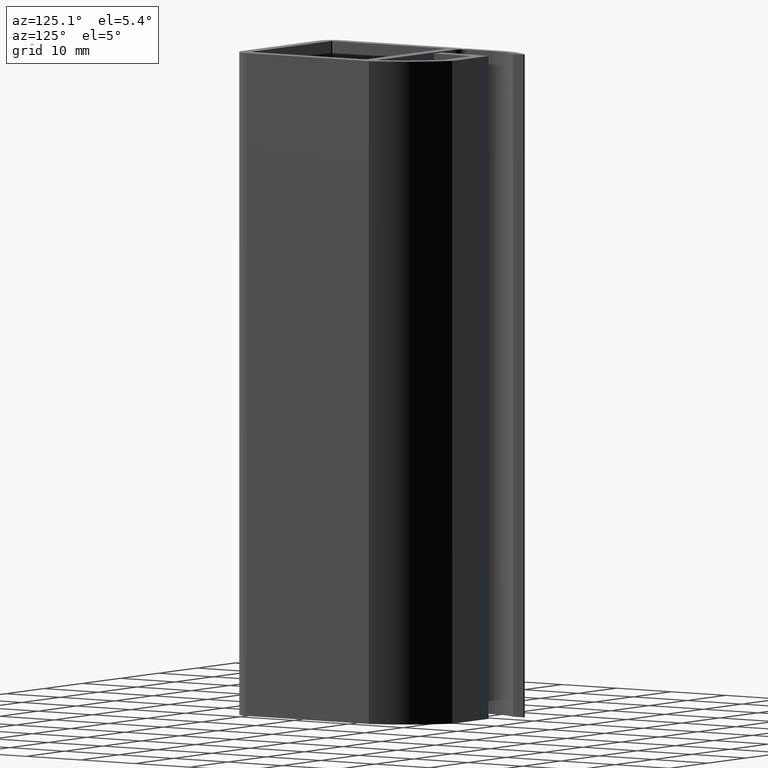
[diagram: clean part render]
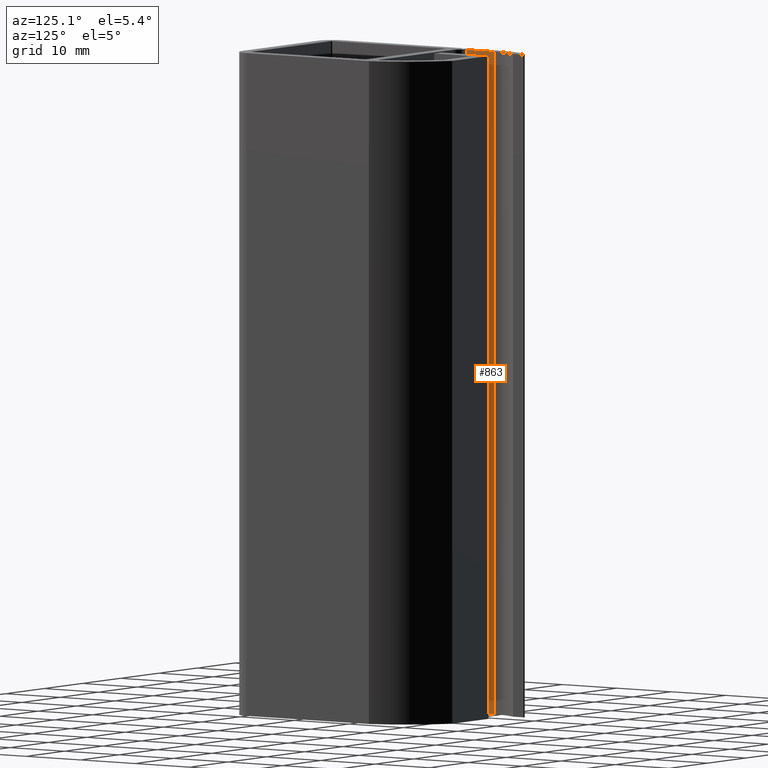
[diagram: same view with one face highlighted and labeled with its STEP entity id]
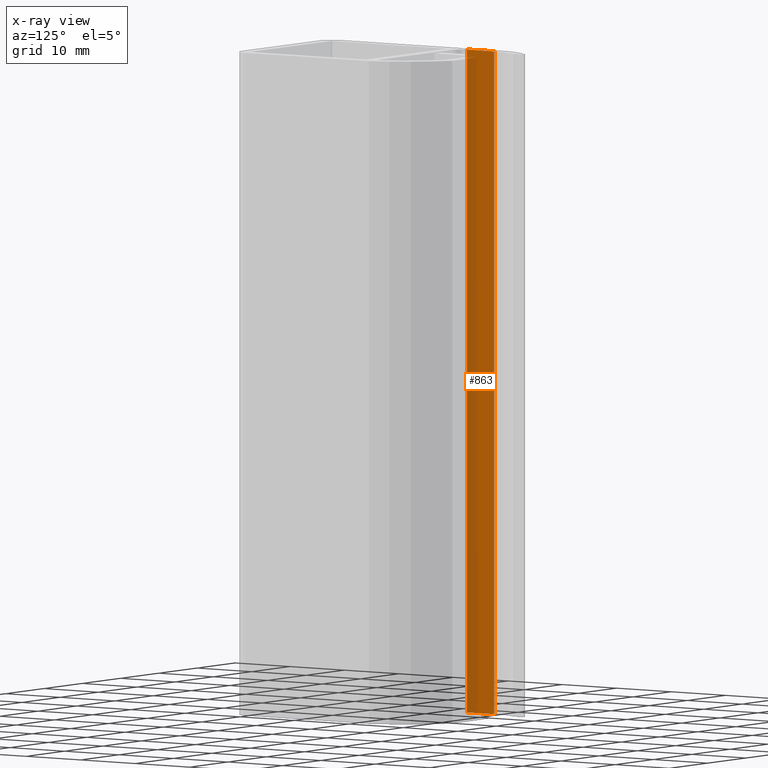
[diagram: x-ray of the same camera — body ghosted, the highlighted face saturated]
A machine part, auxiliary view. The second image highlights one B-rep face of the part: STEP entity #863.
The next image is the same camera in x-ray: the body ghosted, the highlighted face saturated — about 36% of this face is hidden behind the body in this view.
In plain terms, the highlighted planar face has unit normal (1, -0, 0).
Its self-contained STEP definition (entity closure, byte-faithful):
#37=PLANE('',#968);
#80=FACE_OUTER_BOUND('',#125,.T.);
#125=EDGE_LOOP('',(#748,#749,#750,#751));
#204=LINE('',#1347,#288);
#251=LINE('',#1474,#335);
#252=LINE('',#1477,#336);
#253=LINE('',#1478,#337);
#288=VECTOR('',#1073,10.);
#335=VECTOR('',#1216,10.);
#336=VECTOR('',#1219,10.);
#337=VECTOR('',#1220,10.);
#388=VERTEX_POINT('',#1344);
#389=VERTEX_POINT('',#1346);
#421=VERTEX_POINT('',#1472);
#422=VERTEX_POINT('',#1476);
#480=EDGE_CURVE('',#388,#389,#204,.T.);
#544=EDGE_CURVE('',#388,#421,#251,.T.);
#545=EDGE_CURVE('',#422,#421,#252,.T.);
#546=EDGE_CURVE('',#389,#422,#253,.T.);
#748=ORIENTED_EDGE('',*,*,#544,.T.);
#749=ORIENTED_EDGE('',*,*,#545,.F.);
#750=ORIENTED_EDGE('',*,*,#546,.F.);
#751=ORIENTED_EDGE('',*,*,#480,.F.);
#863=ADVANCED_FACE('',(#80),#37,.T.);
#968=AXIS2_PLACEMENT_3D('',#1475,#1217,#1218);
#1073=DIRECTION('',(-3.55271367879964E-15,-1.,0.));
#1216=DIRECTION('',(0.,0.,1.));
#1217=DIRECTION('center_axis',(1.,-3.55271367879964E-15,0.));
#1218=DIRECTION('ref_axis',(3.55271367879964E-15,1.,0.));
#1219=DIRECTION('',(3.55271367879964E-15,1.,0.));
#1220=DIRECTION('',(0.,0.,1.));
#1344=CARTESIAN_POINT('',(-10.9999999999999,19.,-50.));
#1346=CARTESIAN_POINT('',(-10.9999999999999,13.9999999999987,-50.));
#1347=CARTESIAN_POINT('',(-10.9999999999999,13.9999999999987,-50.));
#1472=CARTESIAN_POINT('',(-10.9999999999999,19.,50.));
#1474=CARTESIAN_POINT('',(-10.9999999999999,19.,0.));
#1475=CARTESIAN_POINT('Origin',(-10.9999999999999,13.9999999999987,0.));
#1476=CARTESIAN_POINT('',(-10.9999999999999,13.9999999999987,50.));
#1477=CARTESIAN_POINT('',(-10.9999999999999,13.9999999999987,50.));
#1478=CARTESIAN_POINT('',(-10.9999999999999,13.9999999999987,0.));